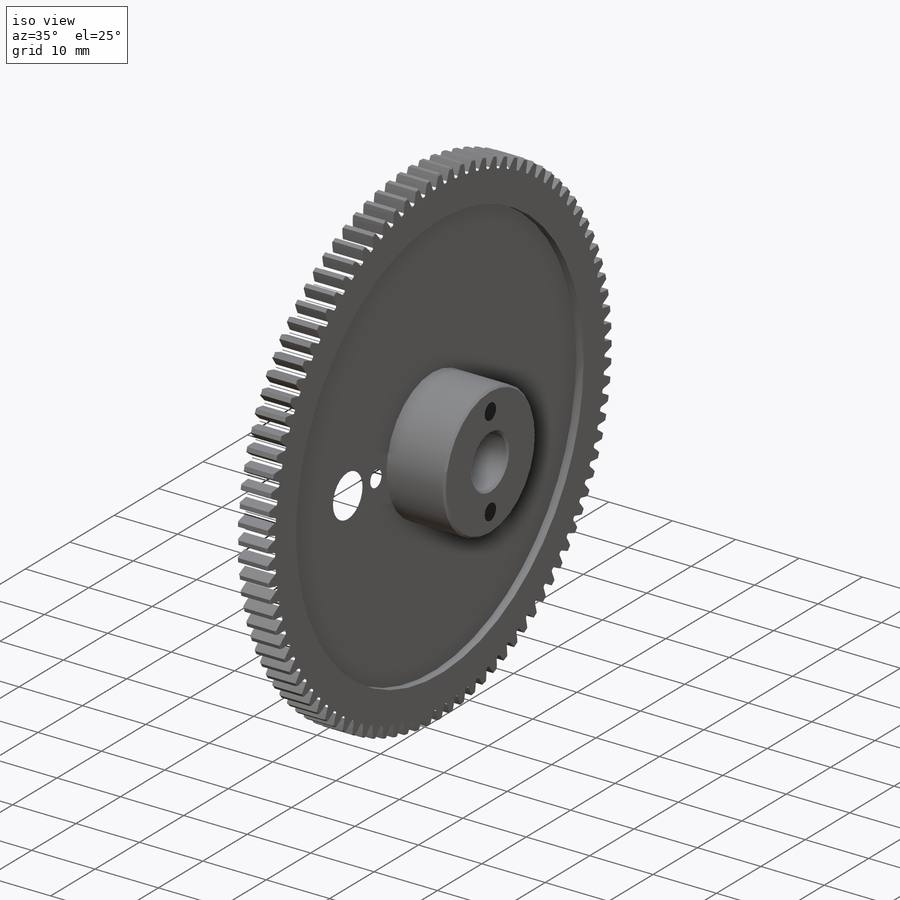
[diagram: iso view]
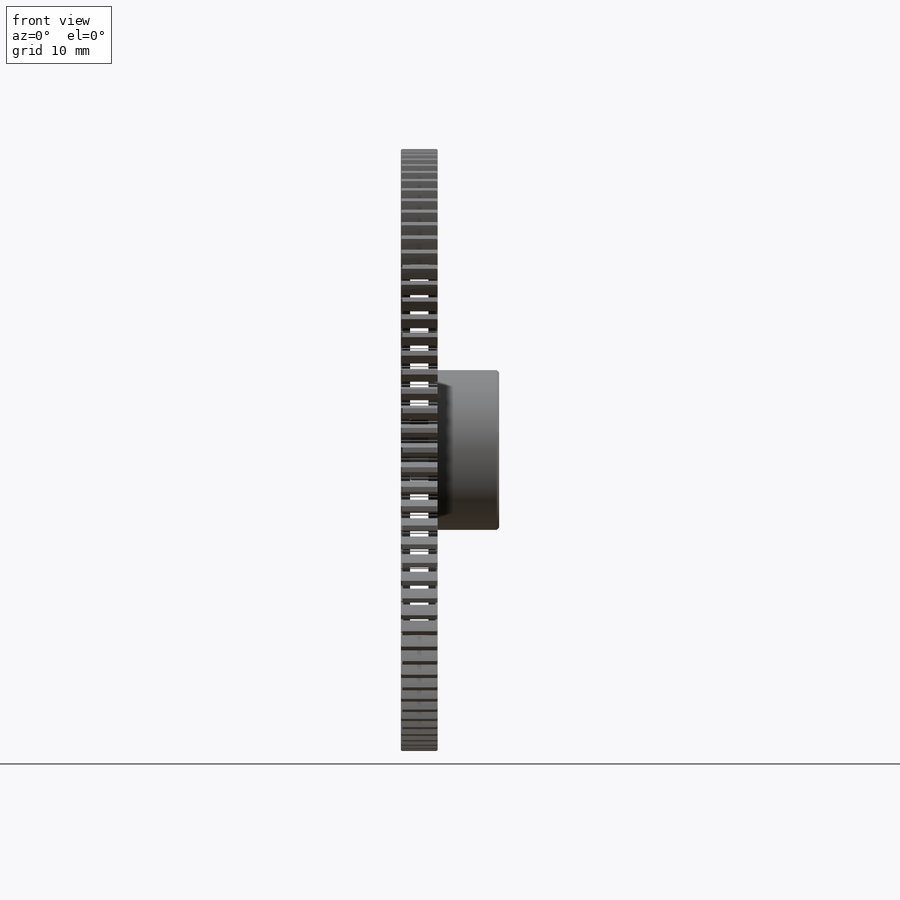
[diagram: front view]
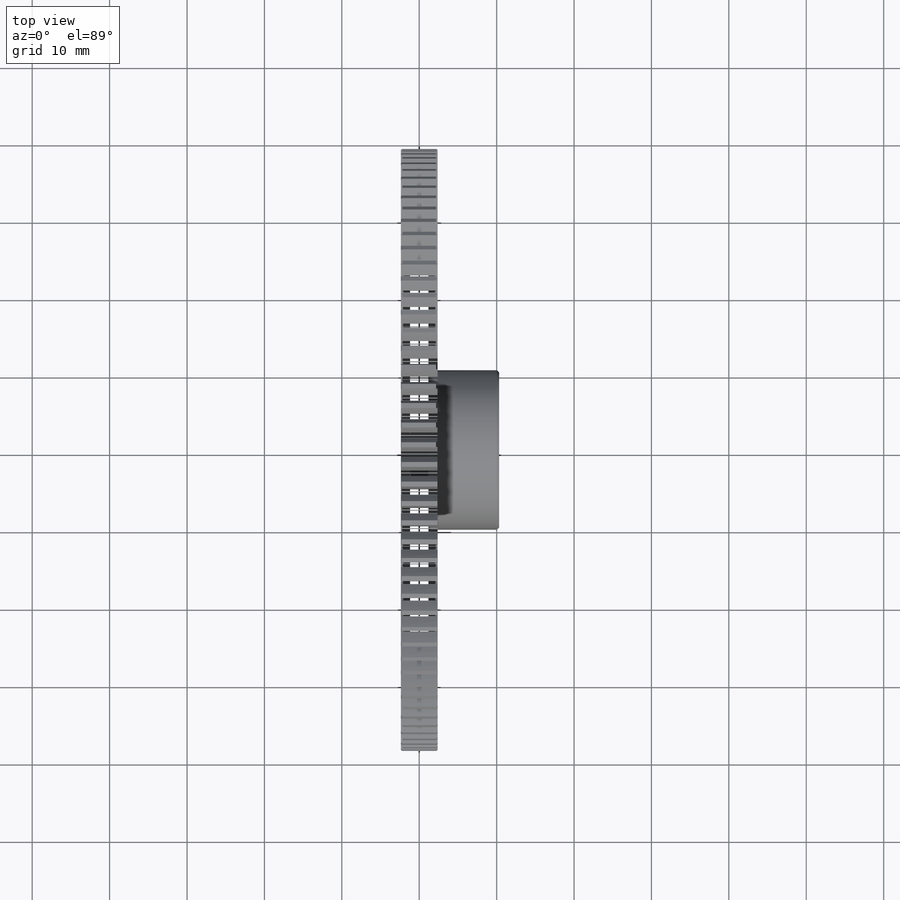
[diagram: top view]
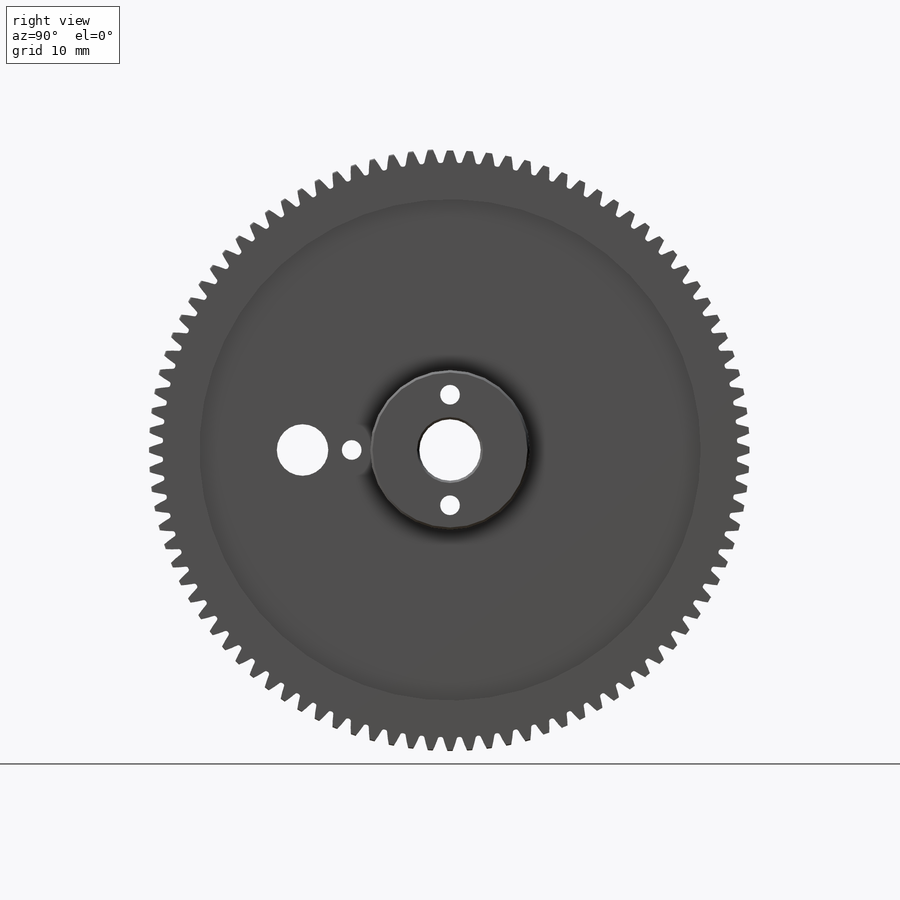
[diagram: right view]
SOLIDWORKS PART (.sldprt)
format: sldprt  version: not decoded by parser v0  size: 4,292,096 bytes
history: native  units: mm
features: sketch x108, cut_extrude x99, revolve x3, hole x3, fillet x2, material x1, plane x1, chamfer x1 (+11 scaffold rows collapsed)
feature tree (229):
  scaffold x11  (default folders/planes/origin — collapsed)
  material  "Material <not specified>"
  sketch  "Sketch1"
  revolve  "Revolve1"  Angle=360deg
  sketch  "Sketch2"
  cut_extrude  "Cut-Extrude1"  Depth=4.7498mm
  sketch  "Sketch3"
  cut_extrude  "Cut-Extrude2"  Depth=4.7498mm
  sketch  "Sketch4"
  cut_extrude  "Cut-Extrude3"  Depth=4.7498mm
  sketch  "Sketch5"
  cut_extrude  "Cut-Extrude4"  Depth=4.7498mm
  sketch  "Sketch6"
  cut_extrude  "Cut-Extrude5"  Depth=4.7498mm
  sketch  "Sketch7"
  cut_extrude  "Cut-Extrude6"  Depth=4.7498mm
  sketch  "Sketch8"
  cut_extrude  "Cut-Extrude7"  Depth=4.7498mm
  sketch  "Sketch9"
  cut_extrude  "Cut-Extrude8"  Depth=4.7498mm
  sketch  "Sketch10"
  cut_extrude  "Cut-Extrude9"  Depth=4.7498mm
  sketch  "Sketch11"
  cut_extrude  "Cut-Extrude10"  Depth=4.7498mm
  sketch  "Sketch12"
  cut_extrude  "Cut-Extrude11"  Depth=4.7498mm
  sketch  "Sketch13"
  cut_extrude  "Cut-Extrude12"  Depth=4.7498mm
  sketch  "Sketch14"
  cut_extrude  "Cut-Extrude13"  Depth=4.7498mm
  sketch  "Sketch15"
  cut_extrude  "Cut-Extrude14"  Depth=4.7498mm
  sketch  "Sketch16"
  cut_extrude  "Cut-Extrude15"  Depth=4.7498mm
  sketch  "Sketch17"
  cut_extrude  "Cut-Extrude16"  Depth=4.7498mm
  sketch  "Sketch18"
  cut_extrude  "Cut-Extrude17"  Depth=4.7498mm
  sketch  "Sketch19"
  cut_extrude  "Cut-Extrude18"  Depth=4.7498mm
  sketch  "Sketch20"
  cut_extrude  "Cut-Extrude19"  Depth=4.7498mm
  sketch  "Sketch21"
  cut_extrude  "Cut-Extrude20"  Depth=4.7498mm
  sketch  "Sketch22"
  cut_extrude  "Cut-Extrude21"  Depth=4.7498mm
  sketch  "Sketch23"
  cut_extrude  "Cut-Extrude22"  Depth=4.7498mm
  sketch  "Sketch24"
  cut_extrude  "Cut-Extrude23"  Depth=4.7498mm
  sketch  "Sketch25"
  cut_extrude  "Cut-Extrude24"  Depth=4.7498mm
  sketch  "Sketch26"
  cut_extrude  "Cut-Extrude25"  Depth=4.7498mm
  sketch  "Sketch27"
  cut_extrude  "Cut-Extrude26"  Depth=4.7498mm
  sketch  "Sketch28"
  cut_extrude  "Cut-Extrude27"  Depth=4.7498mm
  sketch  "Sketch29"
  cut_extrude  "Cut-Extrude28"  Depth=4.7498mm
  sketch  "Sketch30"
  cut_extrude  "Cut-Extrude29"  Depth=4.7498mm
  sketch  "Sketch31"
  cut_extrude  "Cut-Extrude30"  Depth=4.7498mm
  sketch  "Sketch32"
  cut_extrude  "Cut-Extrude31"  Depth=4.7498mm
  sketch  "Sketch33"
  cut_extrude  "Cut-Extrude32"  Depth=4.7498mm
  sketch  "Sketch34"
  cut_extrude  "Cut-Extrude33"  Depth=4.7498mm
  sketch  "Sketch35"
  cut_extrude  "Cut-Extrude34"  Depth=4.7498mm
  sketch  "Sketch36"
  cut_extrude  "Cut-Extrude35"  Depth=4.7498mm
  sketch  "Sketch37"
  cut_extrude  "Cut-Extrude36"  Depth=4.7498mm
  sketch  "Sketch38"
  cut_extrude  "Cut-Extrude37"  Depth=4.7498mm
  sketch  "Sketch39"
  cut_extrude  "Cut-Extrude38"  Depth=4.7498mm
  sketch  "Sketch40"
  cut_extrude  "Cut-Extrude39"  Depth=4.7498mm
  sketch  "Sketch41"
  cut_extrude  "Cut-Extrude40"  Depth=4.7498mm
  sketch  "Sketch42"
  cut_extrude  "Cut-Extrude41"  Depth=4.7498mm
  sketch  "Sketch43"
  cut_extrude  "Cut-Extrude42"  Depth=4.7498mm
  sketch  "Sketch44"
  cut_extrude  "Cut-Extrude43"  Depth=4.7498mm
  sketch  "Sketch45"
  cut_extrude  "Cut-Extrude44"  Depth=4.7498mm
  sketch  "Sketch46"
  cut_extrude  "Cut-Extrude45"  Depth=4.7498mm
  sketch  "Sketch47"
  cut_extrude  "Cut-Extrude46"  Depth=4.7498mm
  sketch  "Sketch48"
  cut_extrude  "Cut-Extrude47"  Depth=4.7498mm
  sketch  "Sketch49"
  cut_extrude  "Cut-Extrude48"  Depth=4.7498mm
  sketch  "Sketch50"
  cut_extrude  "Cut-Extrude49"  Depth=4.7498mm
  sketch  "Sketch51"
  cut_extrude  "Cut-Extrude50"  Depth=4.7498mm
  sketch  "Sketch52"
  cut_extrude  "Cut-Extrude51"  Depth=4.7498mm
  sketch  "Sketch53"
  cut_extrude  "Cut-Extrude52"  Depth=4.7498mm
  sketch  "Sketch54"
  cut_extrude  "Cut-Extrude53"  Depth=4.7498mm
  sketch  "Sketch55"
  cut_extrude  "Cut-Extrude54"  Depth=4.7498mm
  sketch  "Sketch56"
  cut_extrude  "Cut-Extrude55"  Depth=4.7498mm
  sketch  "Sketch57"
  cut_extrude  "Cut-Extrude56"  Depth=4.7498mm
  sketch  "Sketch58"
  cut_extrude  "Cut-Extrude57"  Depth=4.7498mm
  sketch  "Sketch59"
  cut_extrude  "Cut-Extrude58"  Depth=4.7498mm
  sketch  "Sketch60"
  cut_extrude  "Cut-Extrude59"  Depth=4.7498mm
  sketch  "Sketch61"
  cut_extrude  "Cut-Extrude60"  Depth=4.7498mm
  sketch  "Sketch62"
  cut_extrude  "Cut-Extrude61"  Depth=4.7498mm
  sketch  "Sketch63"
  cut_extrude  "Cut-Extrude62"  Depth=4.7498mm
  sketch  "Sketch64"
  cut_extrude  "Cut-Extrude63"  Depth=4.7498mm
  sketch  "Sketch65"
  cut_extrude  "Cut-Extrude64"  Depth=4.7498mm
  sketch  "Sketch66"
  cut_extrude  "Cut-Extrude65"  Depth=4.7498mm
  sketch  "Sketch67"
  cut_extrude  "Cut-Extrude66"  Depth=4.7498mm
  sketch  "Sketch68"
  cut_extrude  "Cut-Extrude67"  Depth=4.7498mm
  sketch  "Sketch69"
  cut_extrude  "Cut-Extrude68"  Depth=4.7498mm
  sketch  "Sketch70"
  cut_extrude  "Cut-Extrude69"  Depth=4.7498mm
  sketch  "Sketch71"
  cut_extrude  "Cut-Extrude70"  Depth=4.7498mm
  sketch  "Sketch72"
  cut_extrude  "Cut-Extrude71"  Depth=4.7498mm
  sketch  "Sketch73"
  cut_extrude  "Cut-Extrude72"  Depth=4.7498mm
  sketch  "Sketch74"
  cut_extrude  "Cut-Extrude73"  Depth=4.7498mm
  sketch  "Sketch75"
  cut_extrude  "Cut-Extrude74"  Depth=4.7498mm
  sketch  "Sketch76"
  cut_extrude  "Cut-Extrude75"  Depth=4.7498mm
  sketch  "Sketch77"
  cut_extrude  "Cut-Extrude76"  Depth=4.7498mm
  sketch  "Sketch78"
  cut_extrude  "Cut-Extrude77"  Depth=4.7498mm
  sketch  "Sketch79"
  cut_extrude  "Cut-Extrude78"  Depth=4.7498mm
  sketch  "Sketch80"
  cut_extrude  "Cut-Extrude79"  Depth=4.7498mm
  sketch  "Sketch81"
  cut_extrude  "Cut-Extrude80"  Depth=4.7498mm
  sketch  "Sketch82"
  cut_extrude  "Cut-Extrude81"  Depth=4.7498mm
  sketch  "Sketch83"
  cut_extrude  "Cut-Extrude82"  Depth=4.7498mm
  sketch  "Sketch84"
  cut_extrude  "Cut-Extrude83"  Depth=4.7498mm
  sketch  "Sketch85"
  cut_extrude  "Cut-Extrude84"  Depth=4.7498mm
  sketch  "Sketch86"
  cut_extrude  "Cut-Extrude85"  Depth=4.7498mm
  sketch  "Sketch87"
  cut_extrude  "Cut-Extrude86"  Depth=4.7498mm
  sketch  "Sketch88"
  cut_extrude  "Cut-Extrude87"  Depth=4.7498mm
  sketch  "Sketch89"
  cut_extrude  "Cut-Extrude88"  Depth=4.7498mm
  sketch  "Sketch90"
  cut_extrude  "Cut-Extrude89"  Depth=4.7498mm
  sketch  "Sketch91"
  cut_extrude  "Cut-Extrude90"  Depth=4.7498mm
  sketch  "Sketch92"
  cut_extrude  "Cut-Extrude91"  Depth=4.7498mm
  sketch  "Sketch93"
  cut_extrude  "Cut-Extrude92"  Depth=4.7498mm
  sketch  "Sketch94"
  cut_extrude  "Cut-Extrude93"  Depth=4.7498mm
  sketch  "Sketch95"
  cut_extrude  "Cut-Extrude94"  Depth=4.7498mm
  sketch  "Sketch96"
  cut_extrude  "Cut-Extrude95"  Depth=4.7498mm
  sketch  "Sketch97"
  cut_extrude  "Cut-Extrude96"  Depth=4.7498mm
  hole  "M56 Clearance Hole1"  Diameter=64.77mm Depth=1.19126mm
  sketch  "Sketch99"
  sketch  "Sketch98"  dims[hole-wizard template sketch: 46 standard entries collapsed; hole parameters kept: c15.Hole Dia.=64.77mm c15.Hole Depth=~1.19126mm c15.D3=~14.816244mm c15.Drill Angle=180.0deg]
  hole  "M56 Clearance Hole2"  Diameter=64.77mm Depth=1.19126mm
  sketch  "Sketch101"
  sketch  "Sketch100"  dims[hole-wizard template sketch: 46 standard entries collapsed; hole parameters kept: c15.Hole Dia.=64.77mm c15.Hole Depth=~1.19126mm c15.D3=~14.816244mm c15.Drill Angle=180.0deg]
  plane  "Plane1"
  sketch  "Sketch102"
  revolve  "Revolve2"  Angle=360deg
  sketch  "Sketch103"  dims[D1=10.3124mm]
  revolve  "Revolve3"  Angle=360deg
  hole  "M7 Clearance Hole1"  Diameter=7.93242mm Depth=12.7mm
  sketch  "Sketch105"
  sketch  "Sketch104"  dims[hole-wizard template sketch: 59 standard entries collapsed; hole parameters kept: c18.Thru Hole Dia.=~7.93242mm c18.Thru Hole Depth=12.7mm]
  chamfer  "Chamfer1"  Distance=0.297466mm Angle=45deg
  fillet  "Fillet1"  Radius=0.198437mm
  fillet  "Fillet2"  Radius=0.309563mm
  sketch  "Sketch106"
  cut_extrude  "Cut-Extrude97"  [1 undecoded]
  sketch  "Sketch107"  dims[D1=6.6548mm D2=2.54mm D3=6.35mm D4=19.05mm]
  cut_extrude  "P clamp mount"  [1 undecoded]
  sketch  "Sketch108"  dims[D1=2.54mm]
  cut_extrude  "Back plate mount"  Depth=2.54mm
decode coverage: 112 of 216 modeling features carry decoded parameters
note: ~ marks probable driven/reference dimensions
note: 2 parameter values undecoded
note: suppression state not decoded; provenance and decode notes live in map.json
